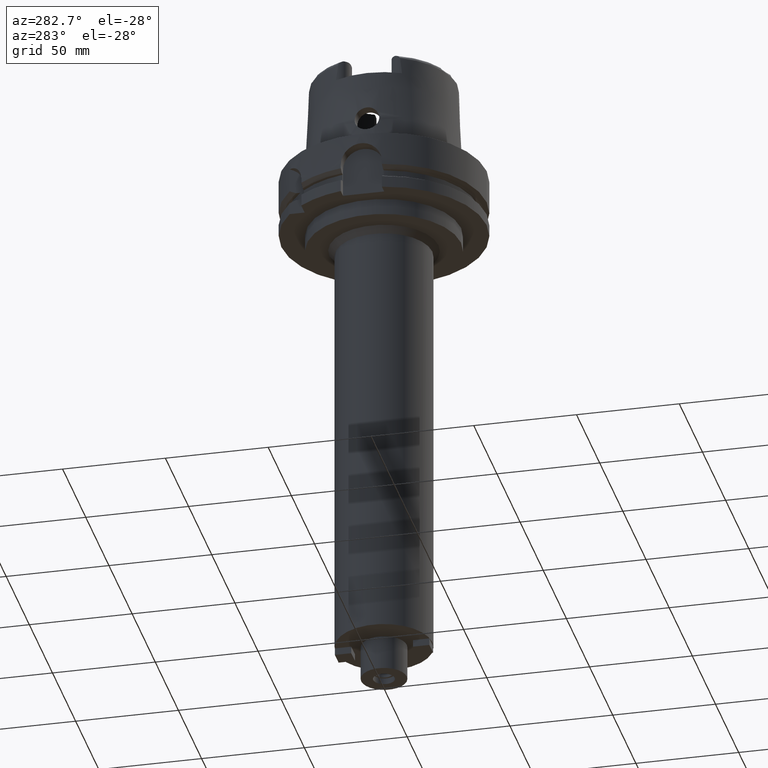
[diagram: clean part render]
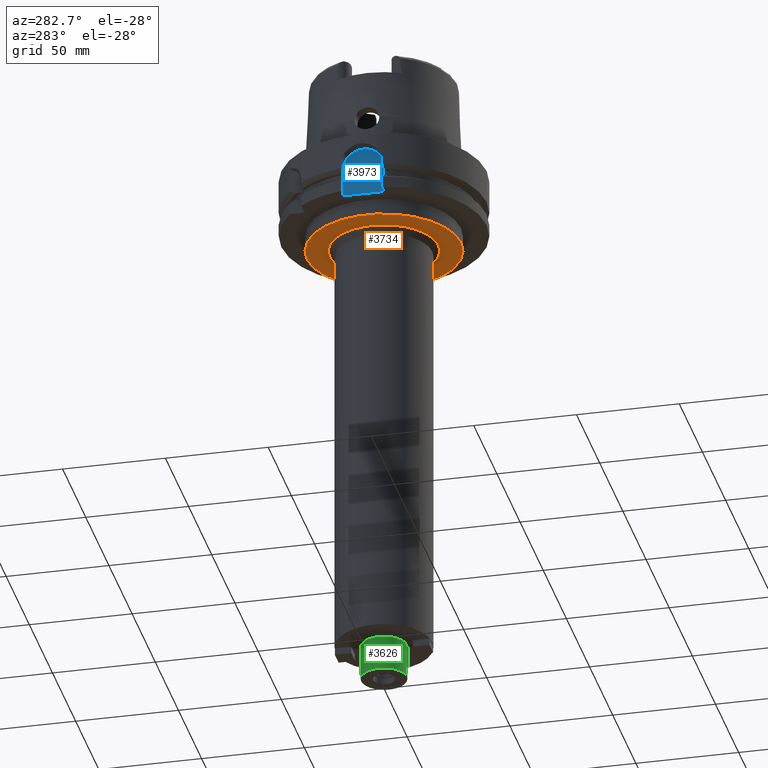
[diagram: same view with three faces highlighted in distinct colors, each labeled with its STEP entity id]
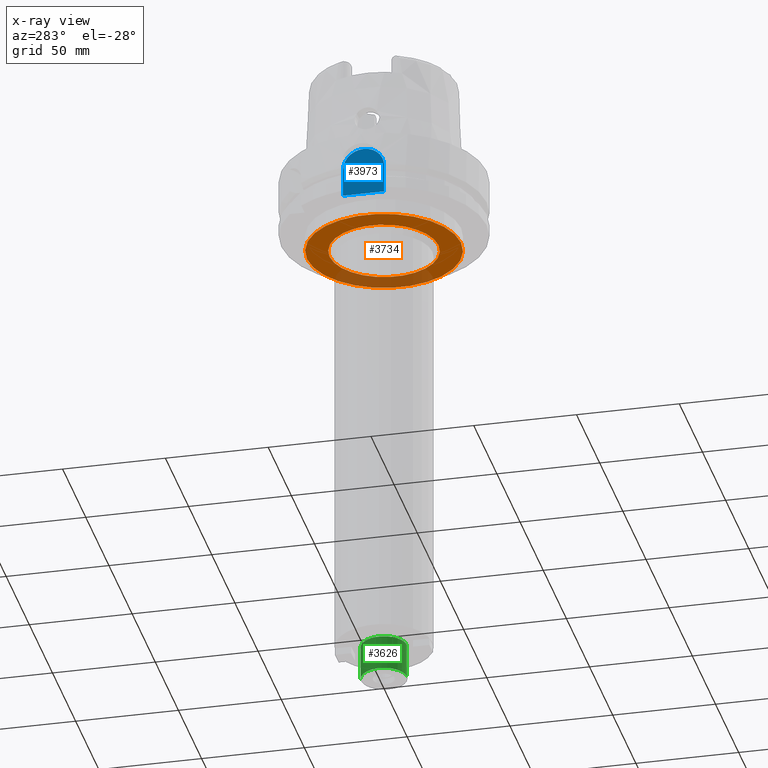
[diagram: x-ray of the same camera — body ghosted, the three highlighted faces saturated]
A machine part, auxiliary view with three faces highlighted in distinct colors.
The next image is the same camera in x-ray (body ghosted, the three faces saturated) — at least one of them is partly hidden behind the body in this view.
Their STEP definitions:

[orange] entity #3734 — the highlighted planar face has unit normal (0, 0, 1).
#1229=CARTESIAN_POINT('',(0.E0,0.E0,-3.7E1));
#1230=DIRECTION('',(0.E0,0.E0,1.E0));
#1231=DIRECTION('',(0.E0,-1.E0,0.E0));
#1232=AXIS2_PLACEMENT_3D('',#1229,#1230,#1231);
#1237=CARTESIAN_POINT('',(0.E0,0.E0,-3.7E1));
#1238=DIRECTION('',(0.E0,0.E0,1.E0));
#1239=DIRECTION('',(0.E0,1.E0,0.E0));
#1240=AXIS2_PLACEMENT_3D('',#1237,#1238,#1239);
#1245=CARTESIAN_POINT('',(0.E0,0.E0,-3.7E1));
#1246=DIRECTION('',(0.E0,0.E0,-1.E0));
#1247=DIRECTION('',(0.E0,-1.E0,0.E0));
#1248=AXIS2_PLACEMENT_3D('',#1245,#1246,#1247);
#1253=CARTESIAN_POINT('',(0.E0,0.E0,-3.7E1));
#1254=DIRECTION('',(0.E0,0.E0,-1.E0));
#1255=DIRECTION('',(0.E0,1.E0,0.E0));
#1256=AXIS2_PLACEMENT_3D('',#1253,#1254,#1255);
#2628=CARTESIAN_POINT('',(0.E0,2.65E1,-3.7E1));
#2629=VERTEX_POINT('',#2628);
#2630=CARTESIAN_POINT('',(0.E0,-2.65E1,-3.7E1));
#2631=VERTEX_POINT('',#2630);
#2632=CARTESIAN_POINT('',(0.E0,-3.75E1,-3.7E1));
#2633=CARTESIAN_POINT('',(0.E0,3.75E1,-3.7E1));
#2634=VERTEX_POINT('',#2632);
#2635=VERTEX_POINT('',#2633);
#3719=CARTESIAN_POINT('',(0.E0,0.E0,-3.7E1));
#3720=DIRECTION('',(0.E0,0.E0,1.E0));
#3721=DIRECTION('',(0.E0,1.E0,0.E0));
#3722=AXIS2_PLACEMENT_3D('',#3719,#3720,#3721);
#3723=PLANE('',#3722);
#3725=ORIENTED_EDGE('',*,*,#3724,.T.);
#3727=ORIENTED_EDGE('',*,*,#3726,.T.);
#3728=EDGE_LOOP('',(#3725,#3727));
#3729=FACE_OUTER_BOUND('',#3728,.F.);
#3730=ORIENTED_EDGE('',*,*,#3698,.T.);
#3731=ORIENTED_EDGE('',*,*,#3714,.T.);
#3732=EDGE_LOOP('',(#3730,#3731));
#3733=FACE_BOUND('',#3732,.F.);
#1233=CIRCLE('',#1232,3.75E1);
#1241=CIRCLE('',#1240,3.75E1);
#1249=CIRCLE('',#1248,2.65E1);
#1257=CIRCLE('',#1256,2.65E1);
#3698=EDGE_CURVE('',#2631,#2629,#1249,.T.);
#3714=EDGE_CURVE('',#2629,#2631,#1257,.T.);
#3724=EDGE_CURVE('',#2634,#2635,#1233,.T.);
#3726=EDGE_CURVE('',#2635,#2634,#1241,.T.);
#3734=ADVANCED_FACE('',(#3729,#3733),#3723,.F.);

[blue] entity #3973 — the highlighted planar face has unit normal (1, 0, 0).
#1477=DIRECTION('',(0.E0,0.E0,1.E0));
#1478=VECTOR('',#1477,1.4E1);
#1479=CARTESIAN_POINT('',(-4.4E1,-1.E1,-2.9E1));
#1480=LINE('',#1479,#1478);
#1491=DIRECTION('',(0.E0,1.E0,0.E0));
#1492=VECTOR('',#1491,2.E1);
#1493=CARTESIAN_POINT('',(-4.4E1,-1.E1,-2.9E1));
#1494=LINE('',#1493,#1492);
#1498=CARTESIAN_POINT('',(-4.4E1,0.E0,-1.5E1));
#1499=DIRECTION('',(1.E0,0.E0,0.E0));
#1500=DIRECTION('',(0.E0,1.E0,0.E0));
#1501=AXIS2_PLACEMENT_3D('',#1498,#1499,#1500);
#1506=CARTESIAN_POINT('',(-4.4E1,0.E0,-1.5E1));
#1507=DIRECTION('',(1.E0,0.E0,0.E0));
#1508=DIRECTION('',(0.E0,0.E0,1.E0));
#1509=AXIS2_PLACEMENT_3D('',#1506,#1507,#1508);
#1528=DIRECTION('',(0.E0,0.E0,-1.E0));
#1529=VECTOR('',#1528,1.4E1);
#1530=CARTESIAN_POINT('',(-4.4E1,1.E1,-1.5E1));
#1531=LINE('',#1530,#1529);
#2648=CARTESIAN_POINT('',(-4.4E1,1.E1,-2.9E1));
#2649=VERTEX_POINT('',#2648);
#2650=CARTESIAN_POINT('',(-4.4E1,-1.E1,-2.9E1));
#2651=VERTEX_POINT('',#2650);
#2694=CARTESIAN_POINT('',(-4.4E1,-1.E1,-1.5E1));
#2695=VERTEX_POINT('',#2694);
#2707=CARTESIAN_POINT('',(-4.4E1,1.E1,-1.5E1));
#2708=VERTEX_POINT('',#2707);
#2709=CARTESIAN_POINT('',(-4.4E1,0.E0,-5.E0));
#2710=VERTEX_POINT('',#2709);
#3958=CARTESIAN_POINT('',(-4.4E1,0.E0,0.E0));
#3959=DIRECTION('',(1.E0,0.E0,0.E0));
#3960=DIRECTION('',(0.E0,0.E0,1.E0));
#3961=AXIS2_PLACEMENT_3D('',#3958,#3959,#3960);
#3962=PLANE('',#3961);
#3963=ORIENTED_EDGE('',*,*,#3776,.T.);
#3965=ORIENTED_EDGE('',*,*,#3964,.F.);
#3967=ORIENTED_EDGE('',*,*,#3966,.T.);
#3969=ORIENTED_EDGE('',*,*,#3968,.T.);
#3970=ORIENTED_EDGE('',*,*,#3938,.F.);
#3971=EDGE_LOOP('',(#3963,#3965,#3967,#3969,#3970));
#3972=FACE_OUTER_BOUND('',#3971,.F.);
#1502=CIRCLE('',#1501,1.E1);
#1510=CIRCLE('',#1509,1.E1);
#3776=EDGE_CURVE('',#2651,#2649,#1494,.T.);
#3938=EDGE_CURVE('',#2651,#2695,#1480,.T.);
#3964=EDGE_CURVE('',#2708,#2649,#1531,.T.);
#3966=EDGE_CURVE('',#2708,#2710,#1502,.T.);
#3968=EDGE_CURVE('',#2710,#2695,#1510,.T.);
#3973=ADVANCED_FACE('',(#3972),#3962,.F.);

[green] entity #3626 — the highlighted cylindrical surface (edge-blend (fillet) strip) has radius 11.1125 mm, axis along (0, 0, 1).
#1087=CARTESIAN_POINT('',(0.E0,0.E0,-2.67E2));
#1088=DIRECTION('',(0.E0,0.E0,1.E0));
#1089=DIRECTION('',(0.E0,1.E0,0.E0));
#1090=AXIS2_PLACEMENT_3D('',#1087,#1088,#1089);
#1111=DIRECTION('',(0.E0,0.E0,-1.E0));
#1112=VECTOR('',#1111,1.7E1);
#1113=CARTESIAN_POINT('',(0.E0,1.11125E1,-2.5E2));
#1114=LINE('',#1113,#1112);
#1118=DIRECTION('',(0.E0,0.E0,-1.E0));
#1119=VECTOR('',#1118,1.7E1);
#1120=CARTESIAN_POINT('',(0.E0,-1.11125E1,-2.5E2));
#1121=LINE('',#1120,#1119);
#1141=CARTESIAN_POINT('',(0.E0,0.E0,-2.5E2));
#1142=DIRECTION('',(0.E0,0.E0,-1.E0));
#1143=DIRECTION('',(0.E0,-1.E0,0.E0));
#1144=AXIS2_PLACEMENT_3D('',#1141,#1142,#1143);
#2596=CARTESIAN_POINT('',(0.E0,-1.11125E1,-2.67E2));
#2597=CARTESIAN_POINT('',(0.E0,1.11125E1,-2.67E2));
#2598=VERTEX_POINT('',#2596);
#2599=VERTEX_POINT('',#2597);
#2600=CARTESIAN_POINT('',(0.E0,1.11125E1,-2.5E2));
#2601=VERTEX_POINT('',#2600);
#2602=CARTESIAN_POINT('',(0.E0,-1.11125E1,-2.5E2));
#2603=VERTEX_POINT('',#2602);
#3614=CARTESIAN_POINT('',(0.E0,0.E0,-2.8285E2));
#3615=DIRECTION('',(0.E0,0.E0,1.E0));
#3616=DIRECTION('',(0.E0,1.E0,0.E0));
#3617=AXIS2_PLACEMENT_3D('',#3614,#3615,#3616);
#3618=CYLINDRICAL_SURFACE('',#3617,1.11125E1);
#3619=ORIENTED_EDGE('',*,*,#3604,.F.);
#3621=ORIENTED_EDGE('',*,*,#3620,.F.);
#3622=ORIENTED_EDGE('',*,*,#3607,.T.);
#3623=ORIENTED_EDGE('',*,*,#3590,.F.);
#3624=EDGE_LOOP('',(#3619,#3621,#3622,#3623));
#3625=FACE_OUTER_BOUND('',#3624,.F.);
#1091=CIRCLE('',#1090,1.11125E1);
#1145=CIRCLE('',#1144,1.11125E1);
#3590=EDGE_CURVE('',#2599,#2598,#1091,.T.);
#3604=EDGE_CURVE('',#2601,#2599,#1114,.T.);
#3607=EDGE_CURVE('',#2603,#2598,#1121,.T.);
#3620=EDGE_CURVE('',#2603,#2601,#1145,.T.);
#3626=ADVANCED_FACE('',(#3625),#3618,.T.);